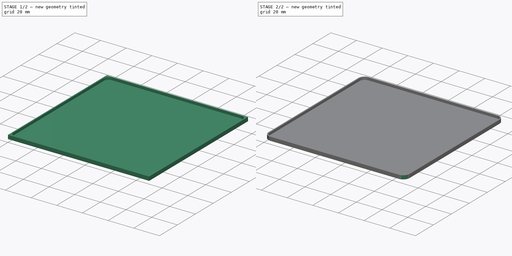
[diagram: build sequence overview — one tinted view per stage of 2, left to right]
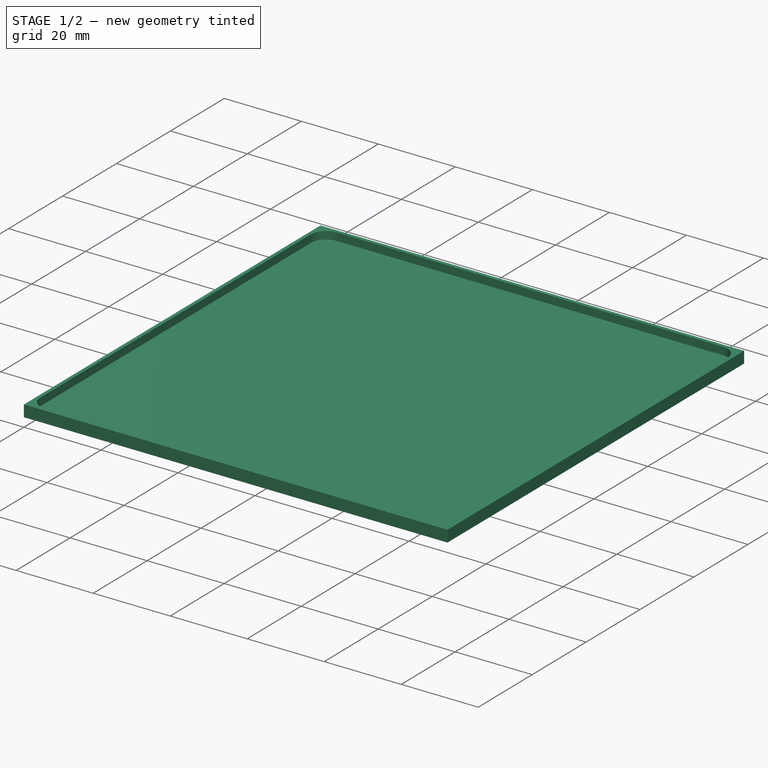
[diagram: stage 1 of 2 — iso view after this stage's code; geometry added in this stage tinted green]
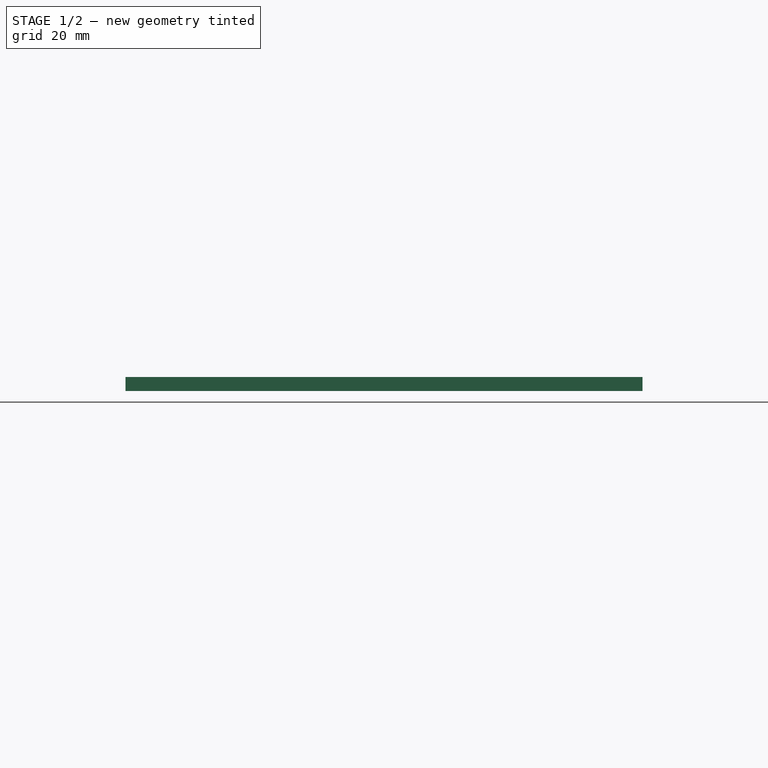
[diagram: stage 1 of 2 — front view after this stage's code; geometry added in this stage tinted green]
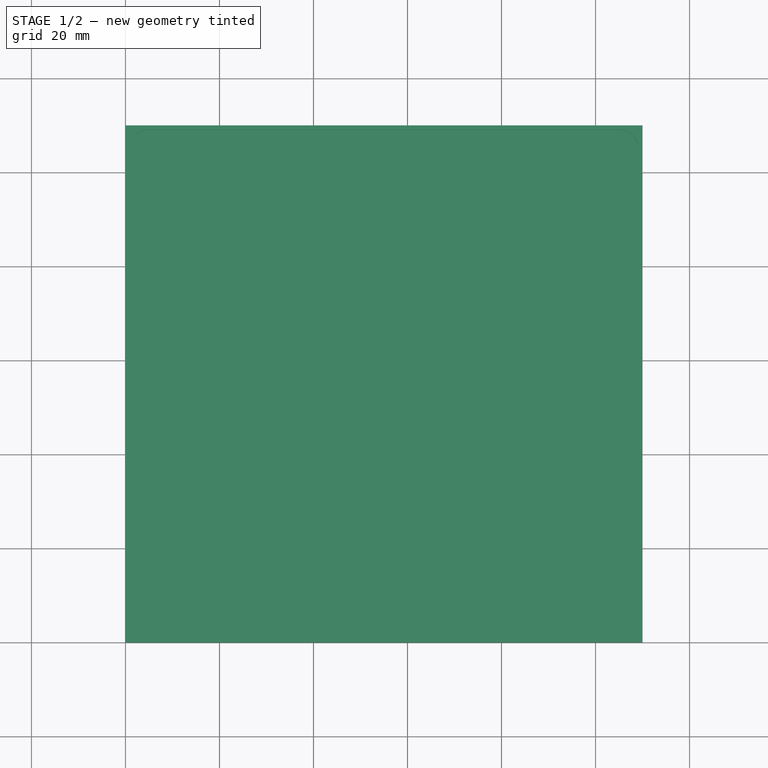
[diagram: stage 1 of 2 — top view after this stage's code; geometry added in this stage tinted green]
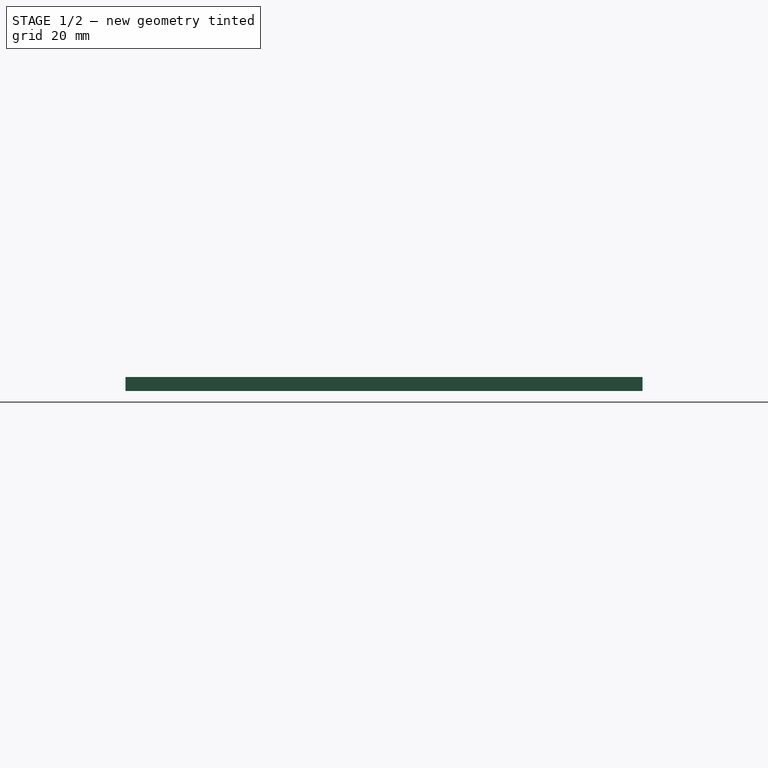
[diagram: stage 1 of 2 — right view after this stage's code; geometry added in this stage tinted green]
FCSTD DOCUMENT  (FreeCAD 0.16R6706 (Git))
Label: couvercle
License: All rights reserved
LicenseURL: http://en.wikipedia.org/wiki/All_rights_reserved
objects: Sketcher::SketchObject×2, PartDesign::Fillet×2, PartDesign::Pad×1, PartDesign::Pocket×1, Part::Part2DObjectPython×1, Part::Mirroring×1
note: 10 computed .brp shape members not serialized (recipe doc carries the construction recipe); baked Part::Feature solids carry a one-line shape summary decoded from their .brp

FEATURE [Sketcher::SketchObject] Sketch
  sketch-geometry (4):
    g0: LineSegment StartX=0 StartY=0 StartZ=0 EndX=110 EndY=0 EndZ=0
    g1: LineSegment StartX=110 StartY=0 StartZ=0 EndX=110 EndY=110 EndZ=0
    g2: LineSegment StartX=110 StartY=110 StartZ=0 EndX=0 EndY=110 EndZ=0
    g3: LineSegment StartX=0 StartY=110 StartZ=0 EndX=0 EndY=0 EndZ=0
  constraints (11):
    c: Coincident(g0,g1)
    c: Coincident(g1,g2)
    c: Coincident(g2,g3)
    c: Coincident(g3,g0)
    c: Horizontal(g0)
    c: Horizontal(g2)
    c: Vertical(g1)
    c: Vertical(g3)
    c: Coincident(g0,g-1)
    c: Distance(g2) = 110
    c: Distance(g1) = 110
FEATURE [PartDesign::Pad] Pad
  Length = 3
  Length2 = 100
  Sketch = -> Sketch
  Type = 0
FEATURE [Sketcher::SketchObject] Sketch001
  Placement = pos=(0,0,3) rot=(0,0,1;0rad)
  Support = -> Pad [Face6]
  sketch-geometry (10):
    g0: LineSegment [constr] StartX=55 StartY=-8.47807 StartZ=0 EndX=55 EndY=132.818 EndZ=0
    g1: LineSegment [constr] StartX=-14.2417 StartY=55 StartZ=0 EndX=138.923 EndY=55 EndZ=0
    g2: LineSegment StartX=105.1 StartY=109.1 StartZ=0 EndX=4.9 EndY=109.1 EndZ=0
    g3: LineSegment StartX=0.9 StartY=105.1 StartZ=0 EndX=0.9 EndY=4.9 EndZ=0
    g4: LineSegment StartX=4.9 StartY=0.9 StartZ=0 EndX=105.1 EndY=0.9 EndZ=0
    g5: LineSegment StartX=109.1 StartY=4.9 StartZ=0 EndX=109.1 EndY=105.1 EndZ=0
    g6: ArcOfCircle CenterX=105.1 CenterY=105.1 CenterZ=0 NormalX=0 NormalY=0 NormalZ=1 Radius=4 StartAngle=0 EndAngle=1.5708
    g7: ArcOfCircle CenterX=4.9 CenterY=105.1 CenterZ=0 NormalX=0 NormalY=0 NormalZ=1 Radius=4 StartAngle=1.5708 EndAngle=3.14159
    g8: ArcOfCircle CenterX=4.9 CenterY=4.9 CenterZ=0 NormalX=0 NormalY=0 NormalZ=1 Radius=4 StartAngle=3.14159 EndAngle=4.71239
    g9: ArcOfCircle CenterX=105.1 CenterY=4.9 CenterZ=0 NormalX=0 NormalY=0 NormalZ=1 Radius=4 StartAngle=4.71239 EndAngle=6.28319
  constraints (24):
    c: Vertical(g0)
    c: DistanceX(g-1,g0) = 55
    c: Horizontal(g1)
    c: DistanceY(g-1,g1) = 55
    c: Horizontal(g2)
    c: Horizontal(g4)
    c: Vertical(g3)
    c: Vertical(g5)
    c: Tangent(g2,g6) = -1.5708
    c: Tangent(g5,g6) = -1.5708
    c: Tangent(g2,g7) = -1.5708
    c: Tangent(g3,g7) = -1.5708
    c: Tangent(g3,g8) = -1.5708
    c: Tangent(g4,g8) = -1.5708
    c: Tangent(g4,g9) = -1.5708
    c: Tangent(g5,g9) = -1.5708
    c: Radius(g6) = 4
    c: Radius(g7) = 4
    c: Radius(g8) = 4
    c: Radius(g9) = 4
    c: Distance(g2,g4) = 108.2
    c: Distance(g3,g5) = 108.2
    c: DistanceY(g1,g2) = 54.1
    c: DistanceX(g0,g5) = 54.1
FEATURE [PartDesign::Pocket] Pocket
  Length = 2
  Sketch = -> Sketch001
  Type = 0
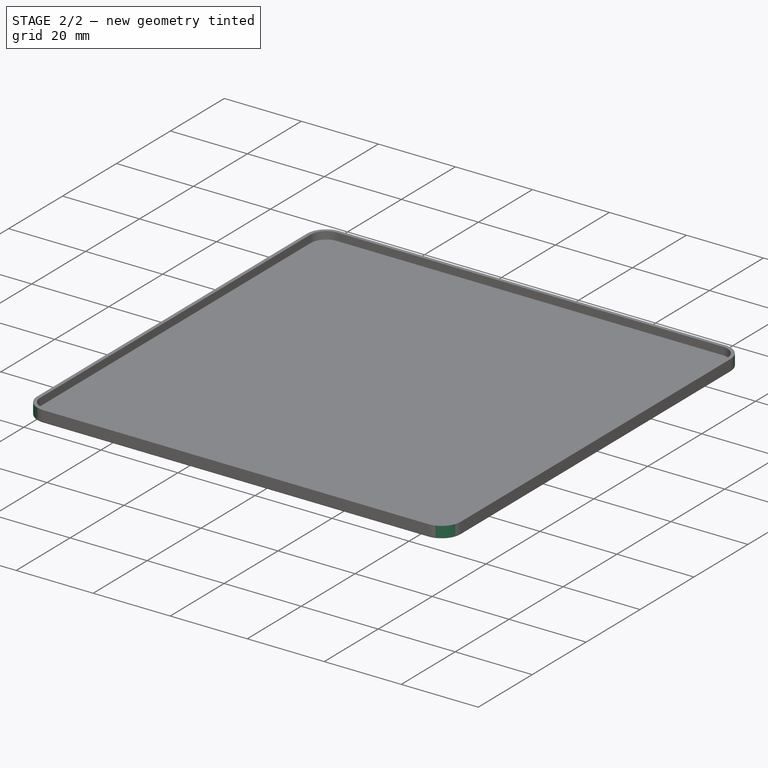
[diagram: stage 2 of 2 — iso view after this stage's code; geometry added in this stage tinted green]
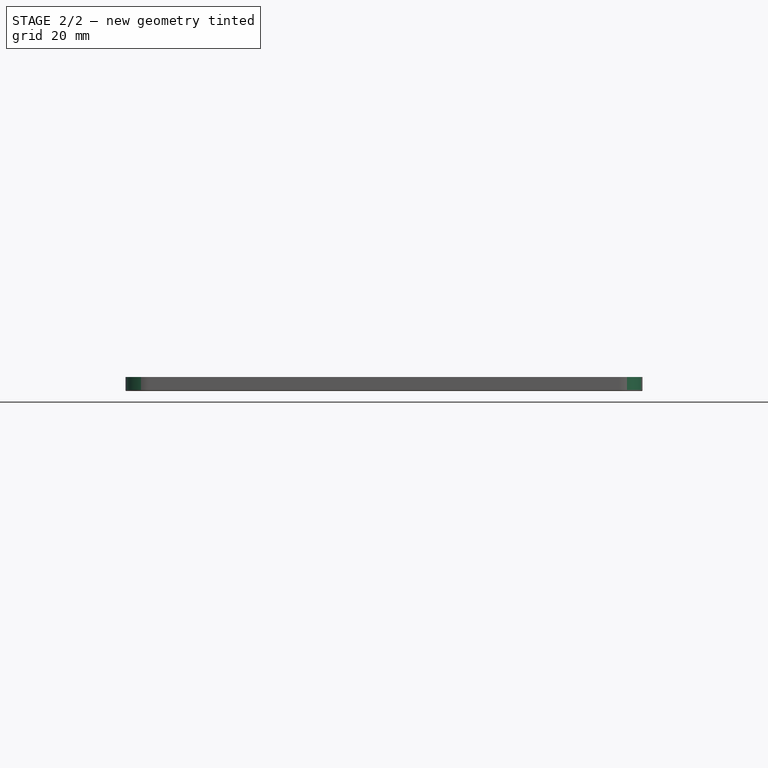
[diagram: stage 2 of 2 — front view after this stage's code; geometry added in this stage tinted green]
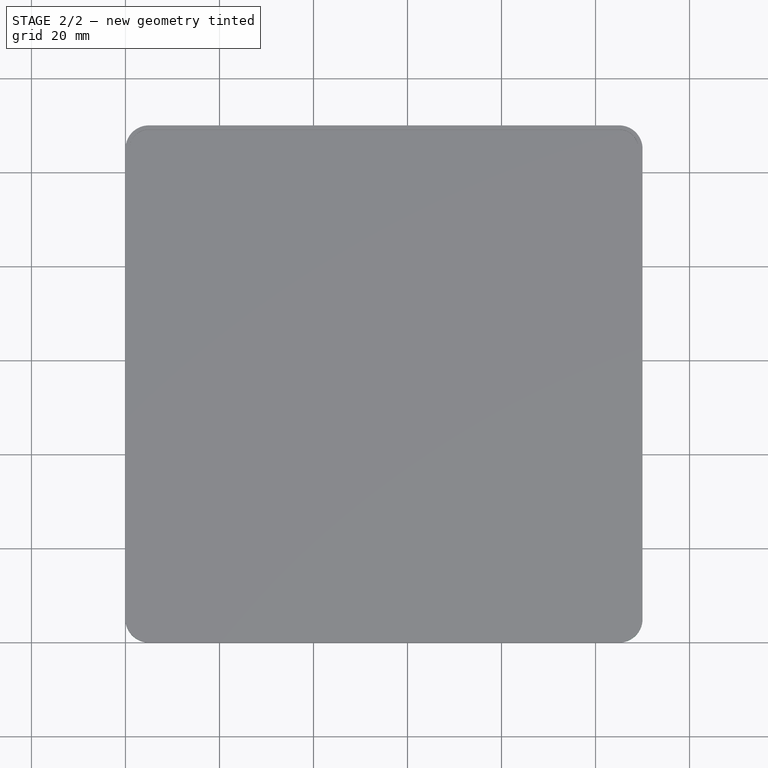
[diagram: stage 2 of 2 — top view after this stage's code; geometry added in this stage tinted green]
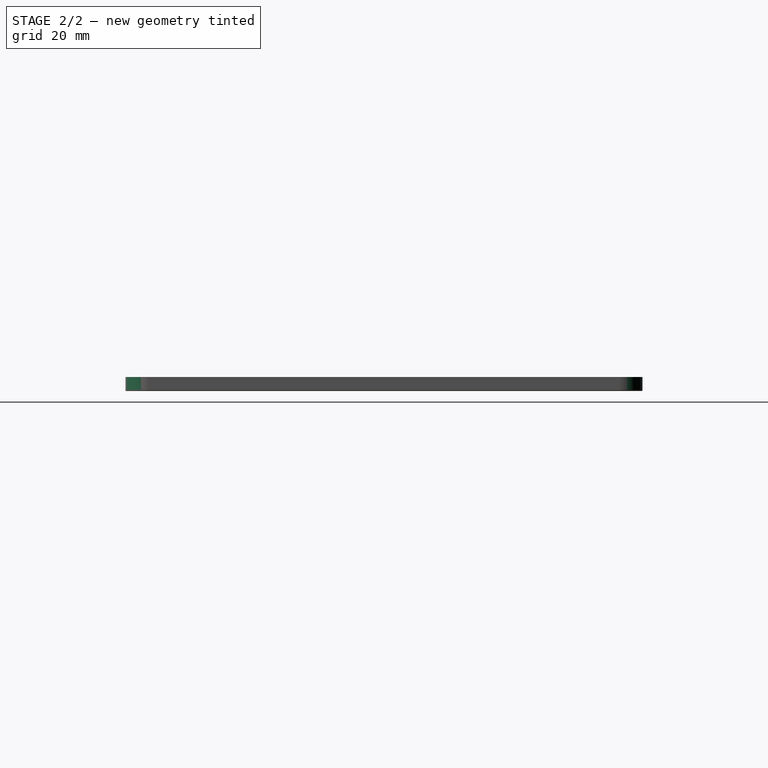
[diagram: stage 2 of 2 — right view after this stage's code; geometry added in this stage tinted green]
FEATURE [PartDesign::Fillet] Fillet
  Base = -> Pocket [Edge2,Edge8,Edge5,Edge1]
  Radius = 5
FEATURE [PartDesign::Fillet] Fillet001
  Base = -> Fillet [Edge1,Edge5,Edge6,Edge7,Edge8,Edge9,Edge10,Edge11]
  Radius = 0.25
FEATURE [Part::Part2DObjectPython] ShapeString  # Draft 2D object (typed FeaturePython)
  FontFile = <userpath>/OneDrive/ACTIVITE EMPLOI/6 Auto-entreprise 2/SC21 ZBIS/lechaudron/ressources/logo visuels/FONTS/Raleway/Raleway-Regular.ttf
  Placement = pos=(30,65,0) rot=(0,0,1;0rad)
  Size = 5
  String = MERCI !
  Support = -> Fillet001
  Tracking = 0
FEATURE [Part::Mirroring] mirror  label="Mirror of ShapeString"
  Base = (23.1827,63.6197,0)
  Normal = (-1,0,0)
  Placement = pos=(50,110,0) rot=(0,0,1;3.14159rad)
  Source = -> ShapeString
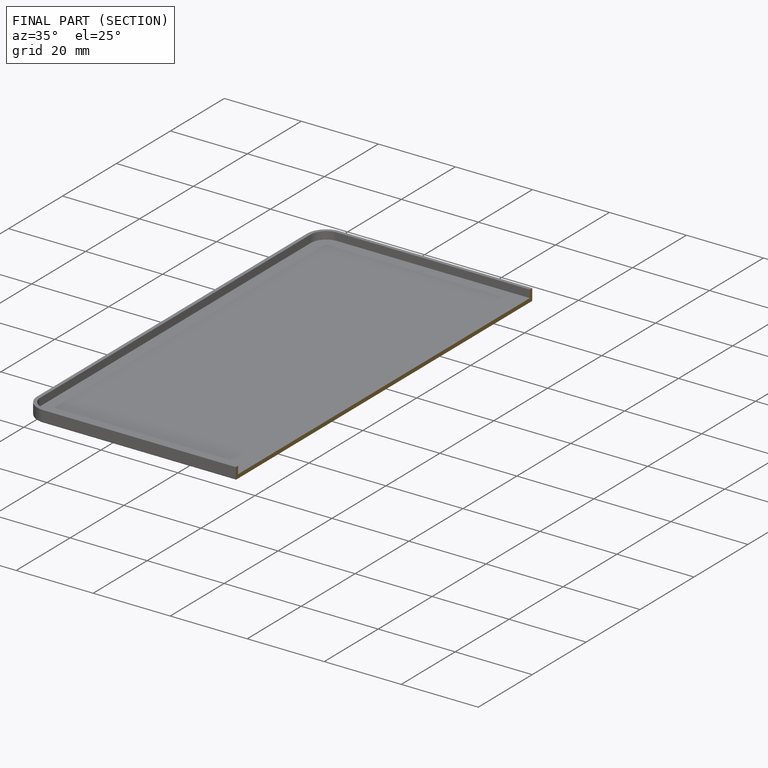
[diagram: finished part — half-section view (interior)]
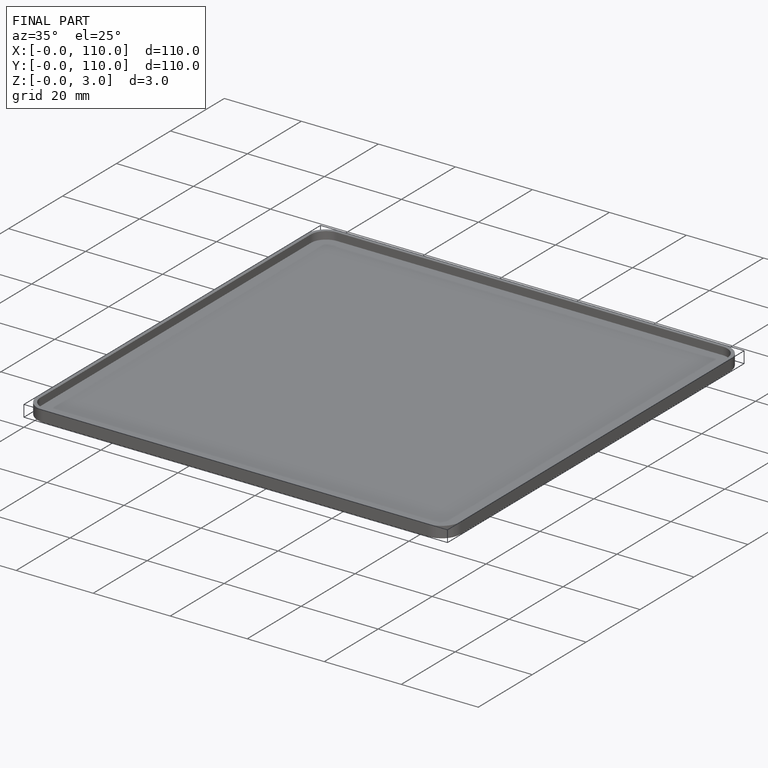
[diagram: finished part — iso view with bounding-box wireframe]
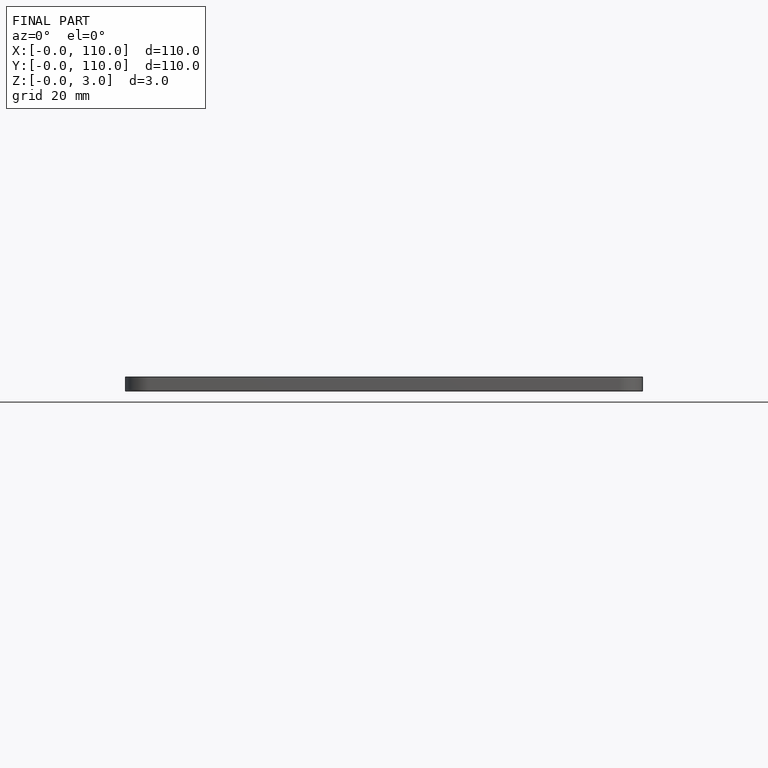
[diagram: finished part — front view with bounding-box wireframe]
